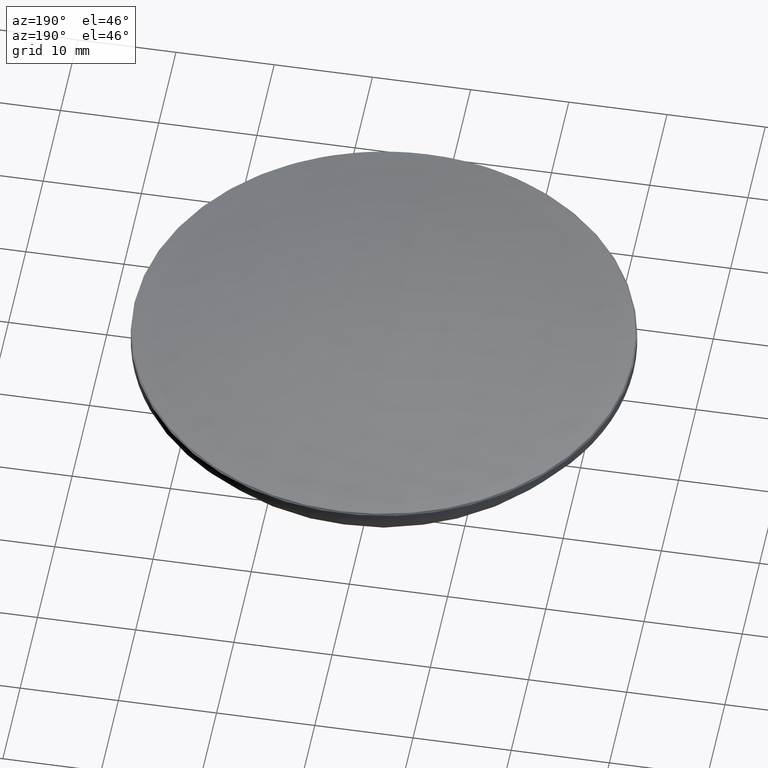
[diagram: clean part render]
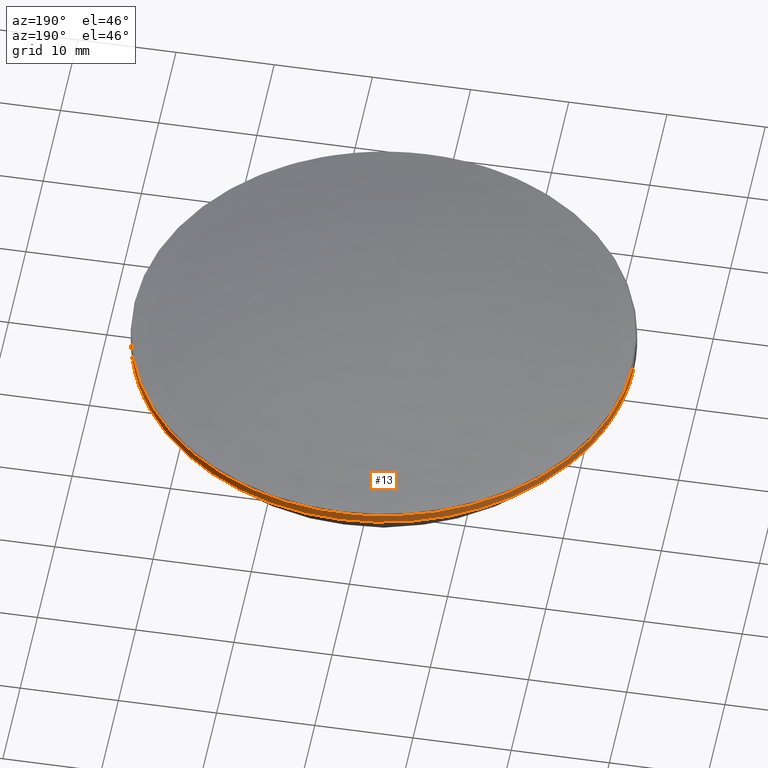
[diagram: same view with one face highlighted and labeled with its STEP entity id]
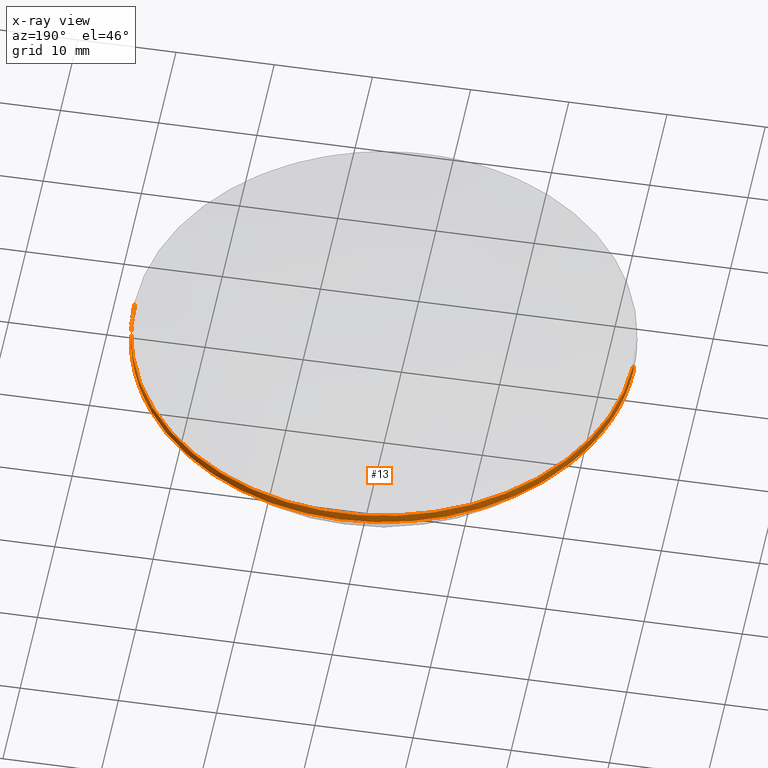
[diagram: x-ray of the same camera — body ghosted, the highlighted face saturated]
A machine part, auxiliary view. The second image highlights one B-rep face of the part: STEP entity #13.
The next image is the same camera in x-ray: the body ghosted, the highlighted face saturated — about 0% of this face is hidden behind the body in this view.
In plain terms, the highlighted cylindrical surface (partial cylindrical patch) has radius 25.4 mm, axis along (-0, -0, -1).
Its self-contained STEP definition (entity closure, byte-faithful):
#7 = ORIENTED_EDGE ( 'NONE', *, *, #107, .T. ) ;
#8 = ORIENTED_EDGE ( 'NONE', *, *, #32, .T. ) ;
#12 = DIRECTION ( 'NONE',  ( 1.000000000000000000, 0.000000000000000000, 0.000000000000000000 ) ) ;
#13 = ADVANCED_FACE ( 'NONE', ( #74 ), #77, .T. ) ;
#21 = VERTEX_POINT ( 'NONE', #142 ) ;
#24 = VERTEX_POINT ( 'NONE', #139 ) ;
#25 = DIRECTION ( 'NONE',  ( -0.000000000000000000, -0.000000000000000000, -1.000000000000000000 ) ) ;
#27 = CIRCLE ( 'NONE', #104, 25.39999999999999503 ) ;
#32 = EDGE_CURVE ( 'NONE', #24, #68, #138, .T. ) ;
#36 = DIRECTION ( 'NONE',  ( -0.000000000000000000, -0.000000000000000000, -1.000000000000000000 ) ) ;
#52 = CARTESIAN_POINT ( 'NONE',  ( -25.39999999999999858, 0.000000000000000000, 16.90000000000001279 ) ) ;
#55 = CIRCLE ( 'NONE', #253, 25.39999999999999858 ) ;
#61 = DIRECTION ( 'NONE',  ( 1.000000000000000000, 0.000000000000000000, 0.000000000000000000 ) ) ;
#68 = VERTEX_POINT ( 'NONE', #88 ) ;
#72 = VERTEX_POINT ( 'NONE', #52 ) ;
#74 = FACE_OUTER_BOUND ( 'NONE', #202, .T. ) ;
#77 = CYLINDRICAL_SURFACE ( 'NONE', #162, 25.39999999999999858 ) ;
#86 = ORIENTED_EDGE ( 'NONE', *, *, #115, .T. ) ;
#88 = CARTESIAN_POINT ( 'NONE',  ( 25.39999999999999503, 3.110602869834276471E-15, 16.00000000000000000 ) ) ;
#89 = CARTESIAN_POINT ( 'NONE',  ( -25.39999999999999503, 0.000000000000000000, 16.00000000000000000 ) ) ;
#94 = VERTEX_POINT ( 'NONE', #89 ) ;
#101 = CARTESIAN_POINT ( 'NONE',  ( -25.39999999999999858, 0.000000000000000000, 20.00000000000000000 ) ) ;
#104 = AXIS2_PLACEMENT_3D ( 'NONE', #118, #186, #163 ) ;
#107 = EDGE_CURVE ( 'NONE', #21, #94, #27, .T. ) ;
#115 = EDGE_CURVE ( 'NONE', #72, #24, #55, .T. ) ;
#118 = CARTESIAN_POINT ( 'NONE',  ( 0.000000000000000000, 0.000000000000000000, 16.00000000000000000 ) ) ;
#123 = CARTESIAN_POINT ( 'NONE',  ( 0.000000000000000000, 0.000000000000000000, 16.00000000000000000 ) ) ;
#126 = AXIS2_PLACEMENT_3D ( 'NONE', #123, #195, #12 ) ;
#128 = EDGE_CURVE ( 'NONE', #72, #94, #255, .T. ) ;
#129 = DIRECTION ( 'NONE',  ( 0.000000000000000000, 0.000000000000000000, -1.000000000000000000 ) ) ;
#138 = LINE ( 'NONE', #143, #187 ) ;
#139 = CARTESIAN_POINT ( 'NONE',  ( 25.39999999999999858, 3.110602869834276865E-15, 16.90000000000001279 ) ) ;
#142 = CARTESIAN_POINT ( 'NONE',  ( 0.000000000000000000, 25.39999999999999503, 16.00000000000000000 ) ) ;
#143 = CARTESIAN_POINT ( 'NONE',  ( 25.39999999999999858, 3.110602869834276865E-15, 20.00000000000000000 ) ) ;
#158 = VECTOR ( 'NONE', #36, 1000.000000000000000 ) ;
#159 = CARTESIAN_POINT ( 'NONE',  ( 0.000000000000000000, 0.000000000000000000, 20.00000000000000000 ) ) ;
#162 = AXIS2_PLACEMENT_3D ( 'NONE', #159, #25, #266 ) ;
#163 = DIRECTION ( 'NONE',  ( 1.000000000000000000, 0.000000000000000000, 0.000000000000000000 ) ) ;
#179 = ORIENTED_EDGE ( 'NONE', *, *, #128, .F. ) ;
#180 = ORIENTED_EDGE ( 'NONE', *, *, #265, .T. ) ;
#186 = DIRECTION ( 'NONE',  ( -0.000000000000000000, -0.000000000000000000, 1.000000000000000000 ) ) ;
#187 = VECTOR ( 'NONE', #268, 1000.000000000000000 ) ;
#195 = DIRECTION ( 'NONE',  ( -0.000000000000000000, -0.000000000000000000, 1.000000000000000000 ) ) ;
#197 = CARTESIAN_POINT ( 'NONE',  ( 0.000000000000000000, 0.000000000000000000, 16.90000000000001279 ) ) ;
#202 = EDGE_LOOP ( 'NONE', ( #86, #8, #180, #7, #179 ) ) ;
#253 = AXIS2_PLACEMENT_3D ( 'NONE', #197, #129, #61 ) ;
#255 = LINE ( 'NONE', #101, #158 ) ;
#265 = EDGE_CURVE ( 'NONE', #68, #21, #272, .T. ) ;
#266 = DIRECTION ( 'NONE',  ( -1.000000000000000000, 0.000000000000000000, 0.000000000000000000 ) ) ;
#268 = DIRECTION ( 'NONE',  ( -0.000000000000000000, -0.000000000000000000, -1.000000000000000000 ) ) ;
#272 = CIRCLE ( 'NONE', #126, 25.39999999999999503 ) ;